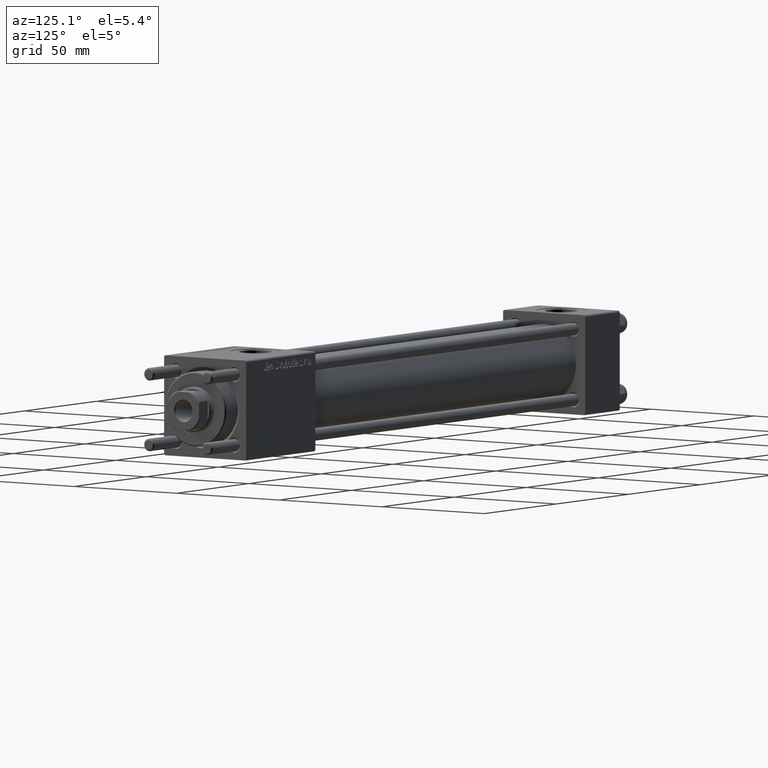
[diagram: clean part render]
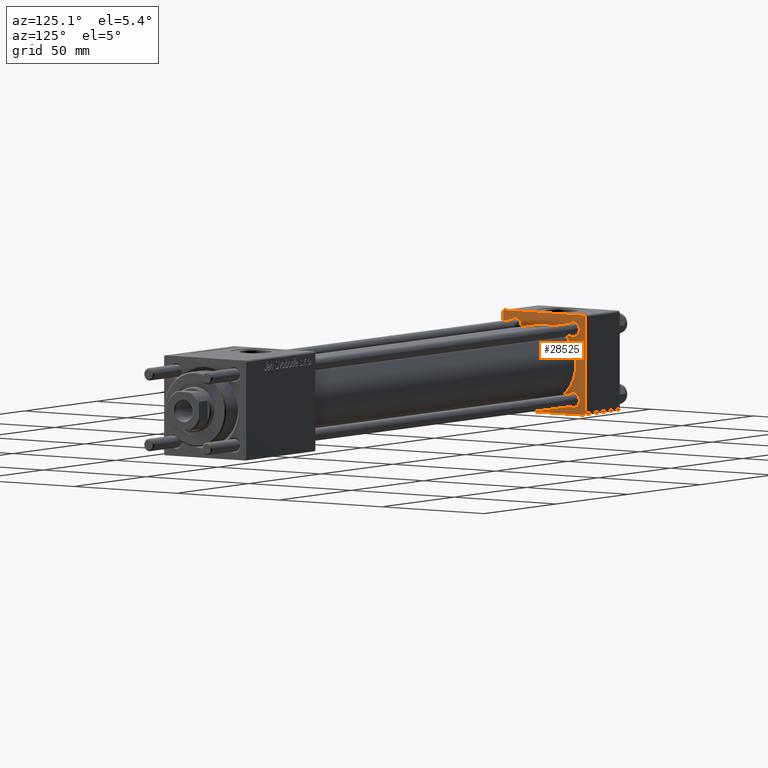
[diagram: same view with one face highlighted and labeled with its STEP entity id]
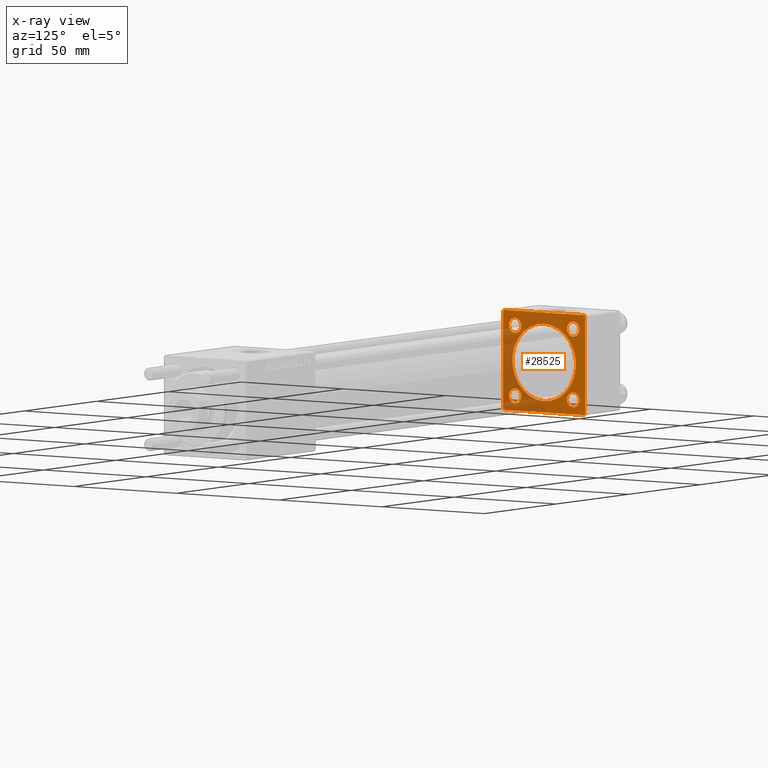
[diagram: x-ray of the same camera — body ghosted, the highlighted face saturated]
A machine part, auxiliary view. The second image highlights one B-rep face of the part: STEP entity #28525.
The next image is the same camera in x-ray: the body ghosted, the highlighted face saturated — about 36% of this face is hidden behind the body in this view.
In plain terms, the highlighted planar face has unit normal (-1, 0, 0).
Its self-contained STEP definition (entity closure, byte-faithful):
#229 = VERTEX_POINT ( 'NONE', #48497 ) ;
#1364 = DIRECTION ( 'NONE',  ( -1.000000000000000000, -0.000000000000000000, -0.000000000000000000 ) ) ;
#1410 = CIRCLE ( 'NONE', #51759, 2.999999999999948930 ) ;
#1480 = DIRECTION ( 'NONE',  ( 0.000000000000000000, 0.000000000000000000, 1.000000000000000000 ) ) ;
#1515 = CARTESIAN_POINT ( 'NONE',  ( 24.00000000000000000, 14.14999999999999858, 17.14999999999994884 ) ) ;
#1564 = EDGE_CURVE ( 'NONE', #53216, #34982, #18871, .T. ) ;
#1810 = DIRECTION ( 'NONE',  ( 0.000000000000000000, 0.000000000000000000, 1.000000000000000000 ) ) ;
#2356 = DIRECTION ( 'NONE',  ( -1.000000000000000000, 0.000000000000000000, -0.000000000000000000 ) ) ;
#2470 = DIRECTION ( 'NONE',  ( 0.000000000000000000, 8.673617379884036705E-17, -1.000000000000000000 ) ) ;
#2591 = CARTESIAN_POINT ( 'NONE',  ( 24.00000000000000000, 20.00000000000000000, -19.50000000000002132 ) ) ;
#2921 = VERTEX_POINT ( 'NONE', #36025 ) ;
#3069 = ORIENTED_EDGE ( 'NONE', *, *, #20165, .T. ) ;
#4094 = ORIENTED_EDGE ( 'NONE', *, *, #24742, .F. ) ;
#4797 = CARTESIAN_POINT ( 'NONE',  ( 24.00000000000000000, -14.14999999999999503, -14.15000000000000391 ) ) ;
#5036 = VERTEX_POINT ( 'NONE', #22498 ) ;
#5214 = CARTESIAN_POINT ( 'NONE',  ( 24.00000000000000000, 20.00000000000000000, -20.00000000000000711 ) ) ;
#5322 = EDGE_LOOP ( 'NONE', ( #7060, #46036 ) ) ;
#5475 = AXIS2_PLACEMENT_3D ( 'NONE', #49410, #49968, #1810 ) ;
#5855 = CARTESIAN_POINT ( 'NONE',  ( 24.00000000000000000, 14.14999999999999858, -17.14999999999994884 ) ) ;
#6334 = CIRCLE ( 'NONE', #35650, 2.999999999999948930 ) ;
#6753 = LINE ( 'NONE', #50632, #17489 ) ;
#7060 = ORIENTED_EDGE ( 'NONE', *, *, #42939, .T. ) ;
#7360 = CARTESIAN_POINT ( 'NONE',  ( 24.00000000000000000, -20.00000000000000355, 19.49999999999998224 ) ) ;
#7595 = LINE ( 'NONE', #19627, #48617 ) ;
#7633 = DIRECTION ( 'NONE',  ( 0.000000000000000000, -0.7071067811865425767, 0.7071067811865525687 ) ) ;
#7920 = LINE ( 'NONE', #55516, #23901 ) ;
#8390 = ORIENTED_EDGE ( 'NONE', *, *, #10670, .T. ) ;
#8720 = LINE ( 'NONE', #48849, #8730 ) ;
#8730 = VECTOR ( 'NONE', #17624, 1000.000000000000114 ) ;
#8965 = LINE ( 'NONE', #47971, #49612 ) ;
#9645 = DIRECTION ( 'NONE',  ( 0.000000000000000000, 0.000000000000000000, 1.000000000000000000 ) ) ;
#9673 = CARTESIAN_POINT ( 'NONE',  ( 23.99999999999999289, -2.602085213965210642E-15, 0.000000000000000000 ) ) ;
#10092 = CARTESIAN_POINT ( 'NONE',  ( 24.00000000000000000, -19.49999999999999289, 19.99999999999998934 ) ) ;
#10515 = ORIENTED_EDGE ( 'NONE', *, *, #44766, .T. ) ;
#10670 = EDGE_CURVE ( 'NONE', #12273, #45550, #16924, .T. ) ;
#10686 = AXIS2_PLACEMENT_3D ( 'NONE', #4797, #24261, #45774 ) ;
#11209 = DIRECTION ( 'NONE',  ( 0.000000000000000000, 0.000000000000000000, 1.000000000000000000 ) ) ;
#11231 = CARTESIAN_POINT ( 'NONE',  ( 24.00000000000000000, 14.14999999999999858, 11.15000000000005365 ) ) ;
#11267 = VERTEX_POINT ( 'NONE', #23962 ) ;
#11317 = DIRECTION ( 'NONE',  ( 0.000000000000000000, -1.000000000000000000, -2.602085213965210149E-16 ) ) ;
#11793 = EDGE_CURVE ( 'NONE', #13203, #56105, #6334, .T. ) ;
#12273 = VERTEX_POINT ( 'NONE', #35113 ) ;
#12689 = EDGE_LOOP ( 'NONE', ( #41482, #55233 ) ) ;
#13203 = VERTEX_POINT ( 'NONE', #1515 ) ;
#13991 = EDGE_CURVE ( 'NONE', #34793, #36107, #30207, .T. ) ;
#15761 = AXIS2_PLACEMENT_3D ( 'NONE', #9673, #32023, #45501 ) ;
#16067 = VECTOR ( 'NONE', #17946, 1000.000000000000000 ) ;
#16452 = CARTESIAN_POINT ( 'NONE',  ( 23.99999999999999289, -7.038826752868131828E-16, -15.50000000000000000 ) ) ;
#16924 = LINE ( 'NONE', #2591, #31016 ) ;
#17207 = EDGE_CURVE ( 'NONE', #39009, #44086, #51214, .T. ) ;
#17230 = CARTESIAN_POINT ( 'NONE',  ( 24.00000000000000000, 14.14999999999999858, -14.15000000000000036 ) ) ;
#17489 = VECTOR ( 'NONE', #2470, 1000.000000000000000 ) ;
#17624 = DIRECTION ( 'NONE',  ( -0.000000000000000000, -0.7071067811865500152, -0.7071067811865451302 ) ) ;
#17946 = DIRECTION ( 'NONE',  ( 0.000000000000000000, 0.7071067811865401342, -0.7071067811865549002 ) ) ;
#18871 = CIRCLE ( 'NONE', #50024, 2.999999999999948930 ) ;
#19627 = CARTESIAN_POINT ( 'NONE',  ( 24.00000000000000000, 20.00000000000000000, 20.00000000000000000 ) ) ;
#20165 = EDGE_CURVE ( 'NONE', #24892, #229, #6753, .T. ) ;
#20650 = CIRCLE ( 'NONE', #56396, 2.999999999999948930 ) ;
#21408 = EDGE_CURVE ( 'NONE', #34615, #5036, #7920, .T. ) ;
#21861 = EDGE_CURVE ( 'NONE', #12273, #42458, #39655, .T. ) ;
#22498 = CARTESIAN_POINT ( 'NONE',  ( 24.00000000000000000, 19.50000000000000000, 20.00000000000000000 ) ) ;
#23498 = ORIENTED_EDGE ( 'NONE', *, *, #53504, .T. ) ;
#23901 = VECTOR ( 'NONE', #7633, 999.9999999999998863 ) ;
#23962 = CARTESIAN_POINT ( 'NONE',  ( 24.00000000000000000, -14.14999999999999503, 17.15000000000000924 ) ) ;
#23967 = EDGE_CURVE ( 'NONE', #34615, #45550, #8965, .T. ) ;
#23983 = CIRCLE ( 'NONE', #15761, 15.50000000000000000 ) ;
#24261 = DIRECTION ( 'NONE',  ( -1.000000000000000000, -0.000000000000000000, -0.000000000000000000 ) ) ;
#24742 = EDGE_CURVE ( 'NONE', #44086, #39009, #23983, .T. ) ;
#24797 = AXIS2_PLACEMENT_3D ( 'NONE', #42497, #2356, #50805 ) ;
#24892 = VERTEX_POINT ( 'NONE', #7360 ) ;
#28270 = ORIENTED_EDGE ( 'NONE', *, *, #44313, .T. ) ;
#28463 = CARTESIAN_POINT ( 'NONE',  ( 24.00000000000000000, 20.00000000000000000, -19.50000000000002132 ) ) ;
#28525 = ADVANCED_FACE ( 'NONE', ( #28714, #42210, #29289, #46501, #41921, #51093 ), #54538, .F. ) ;
#28714 = FACE_BOUND ( 'NONE', #53295, .T. ) ;
#28895 = AXIS2_PLACEMENT_3D ( 'NONE', #40647, #1364, #36337 ) ;
#29278 = DIRECTION ( 'NONE',  ( 0.000000000000000000, 0.000000000000000000, 1.000000000000000000 ) ) ;
#29289 = FACE_BOUND ( 'NONE', #12689, .T. ) ;
#29826 = CARTESIAN_POINT ( 'NONE',  ( 24.00000000000000000, -14.14999999999999503, -17.15000000000000924 ) ) ;
#30207 = CIRCLE ( 'NONE', #5475, 3.000000000000004441 ) ;
#30320 = VECTOR ( 'NONE', #49096, 1000.000000000000000 ) ;
#30472 = CARTESIAN_POINT ( 'NONE',  ( 23.99999999999999289, -2.602085213965210642E-15, 15.50000000000000000 ) ) ;
#30513 = EDGE_CURVE ( 'NONE', #5036, #55094, #7595, .T. ) ;
#30833 = CARTESIAN_POINT ( 'NONE',  ( 24.00000000000000000, -19.50000000000000711, -20.00000000000000000 ) ) ;
#31016 = VECTOR ( 'NONE', #33548, 1000.000000000000000 ) ;
#31145 = DIRECTION ( 'NONE',  ( -1.000000000000000000, -0.000000000000000000, -0.000000000000000000 ) ) ;
#31318 = DIRECTION ( 'NONE',  ( 0.000000000000000000, 0.000000000000000000, 1.000000000000000000 ) ) ;
#32023 = DIRECTION ( 'NONE',  ( 1.000000000000000000, 0.000000000000000000, 0.000000000000000000 ) ) ;
#33548 = DIRECTION ( 'NONE',  ( -0.000000000000000000, 0.7071067811865524577, 0.7071067811865426878 ) ) ;
#34362 = CIRCLE ( 'NONE', #43535, 3.000000000000004441 ) ;
#34486 = EDGE_LOOP ( 'NONE', ( #4094, #50042 ) ) ;
#34615 = VERTEX_POINT ( 'NONE', #37583 ) ;
#34705 = DIRECTION ( 'NONE',  ( 0.000000000000000000, 0.000000000000000000, 1.000000000000000000 ) ) ;
#34793 = VERTEX_POINT ( 'NONE', #29826 ) ;
#34982 = VERTEX_POINT ( 'NONE', #5855 ) ;
#35113 = CARTESIAN_POINT ( 'NONE',  ( 24.00000000000000000, 19.50000000000000711, -20.00000000000000711 ) ) ;
#35650 = AXIS2_PLACEMENT_3D ( 'NONE', #35880, #53945, #1480 ) ;
#35747 = CARTESIAN_POINT ( 'NONE',  ( 24.00000000000000000, -19.50000000000000711, -20.00000000000000000 ) ) ;
#35880 = CARTESIAN_POINT ( 'NONE',  ( 24.00000000000000000, 14.14999999999999858, 14.15000000000000036 ) ) ;
#36025 = CARTESIAN_POINT ( 'NONE',  ( 24.00000000000000000, -14.14999999999999503, 11.15000000000000036 ) ) ;
#36107 = VERTEX_POINT ( 'NONE', #40301 ) ;
#36337 = DIRECTION ( 'NONE',  ( 0.000000000000000000, 0.000000000000000000, 1.000000000000000000 ) ) ;
#36917 = ORIENTED_EDGE ( 'NONE', *, *, #30513, .T. ) ;
#37037 = LINE ( 'NONE', #30833, #16067 ) ;
#37583 = CARTESIAN_POINT ( 'NONE',  ( 24.00000000000000000, 20.00000000000000000, 19.49999999999999289 ) ) ;
#37873 = DIRECTION ( 'NONE',  ( 1.000000000000000000, 0.000000000000000000, 0.000000000000000000 ) ) ;
#37893 = CARTESIAN_POINT ( 'NONE',  ( 24.00000000000000000, 14.14999999999999858, 14.15000000000000036 ) ) ;
#38188 = DIRECTION ( 'NONE',  ( -1.000000000000000000, -0.000000000000000000, -0.000000000000000000 ) ) ;
#39009 = VERTEX_POINT ( 'NONE', #16452 ) ;
#39655 = LINE ( 'NONE', #5214, #30320 ) ;
#39735 = ORIENTED_EDGE ( 'NONE', *, *, #21408, .T. ) ;
#40054 = CARTESIAN_POINT ( 'NONE',  ( 24.00000000000000000, 14.14999999999999858, -14.15000000000000036 ) ) ;
#40301 = CARTESIAN_POINT ( 'NONE',  ( 24.00000000000000000, -14.14999999999999503, -11.15000000000000036 ) ) ;
#40647 = CARTESIAN_POINT ( 'NONE',  ( 24.00000000000000000, -14.14999999999999503, 14.15000000000000391 ) ) ;
#41482 = ORIENTED_EDGE ( 'NONE', *, *, #44056, .T. ) ;
#41536 = CARTESIAN_POINT ( 'NONE',  ( 24.00000000000000000, 14.14999999999999858, -11.15000000000005365 ) ) ;
#41593 = CIRCLE ( 'NONE', #28895, 3.000000000000004441 ) ;
#41921 = FACE_BOUND ( 'NONE', #34486, .T. ) ;
#42210 = FACE_BOUND ( 'NONE', #5322, .T. ) ;
#42458 = VERTEX_POINT ( 'NONE', #35747 ) ;
#42497 = CARTESIAN_POINT ( 'NONE',  ( 24.00000000000000000, 0.000000000000000000, 0.000000000000000000 ) ) ;
#42758 = CIRCLE ( 'NONE', #10686, 3.000000000000004441 ) ;
#42939 = EDGE_CURVE ( 'NONE', #34982, #53216, #1410, .T. ) ;
#43535 = AXIS2_PLACEMENT_3D ( 'NONE', #48822, #49106, #31318 ) ;
#43575 = ORIENTED_EDGE ( 'NONE', *, *, #13991, .T. ) ;
#44056 = EDGE_CURVE ( 'NONE', #2921, #11267, #34362, .T. ) ;
#44086 = VERTEX_POINT ( 'NONE', #30472 ) ;
#44313 = EDGE_CURVE ( 'NONE', #56105, #13203, #20650, .T. ) ;
#44414 = EDGE_CURVE ( 'NONE', #11267, #2921, #41593, .T. ) ;
#44766 = EDGE_CURVE ( 'NONE', #55094, #24892, #8720, .T. ) ;
#45263 = EDGE_LOOP ( 'NONE', ( #51039, #8390, #54937, #39735, #36917, #10515, #3069, #48856 ) ) ;
#45501 = DIRECTION ( 'NONE',  ( 0.000000000000000000, 0.000000000000000000, 1.000000000000000000 ) ) ;
#45550 = VERTEX_POINT ( 'NONE', #28463 ) ;
#45717 = AXIS2_PLACEMENT_3D ( 'NONE', #50204, #37873, #11209 ) ;
#45774 = DIRECTION ( 'NONE',  ( 0.000000000000000000, 0.000000000000000000, 1.000000000000000000 ) ) ;
#46036 = ORIENTED_EDGE ( 'NONE', *, *, #1564, .T. ) ;
#46501 = FACE_BOUND ( 'NONE', #49882, .T. ) ;
#47971 = CARTESIAN_POINT ( 'NONE',  ( 24.00000000000000000, 20.00000000000000000, 20.00000000000000000 ) ) ;
#48497 = CARTESIAN_POINT ( 'NONE',  ( 24.00000000000000000, -20.00000000000000000, -19.49999999999999645 ) ) ;
#48617 = VECTOR ( 'NONE', #11317, 1000.000000000000000 ) ;
#48822 = CARTESIAN_POINT ( 'NONE',  ( 24.00000000000000000, -14.14999999999999503, 14.15000000000000391 ) ) ;
#48849 = CARTESIAN_POINT ( 'NONE',  ( 24.00000000000000000, -20.00000000000000355, 19.49999999999998224 ) ) ;
#48856 = ORIENTED_EDGE ( 'NONE', *, *, #48862, .T. ) ;
#48862 = EDGE_CURVE ( 'NONE', #229, #42458, #37037, .T. ) ;
#49096 = DIRECTION ( 'NONE',  ( 0.000000000000000000, -1.000000000000000000, 1.734723475976807094E-16 ) ) ;
#49106 = DIRECTION ( 'NONE',  ( -1.000000000000000000, -0.000000000000000000, -0.000000000000000000 ) ) ;
#49410 = CARTESIAN_POINT ( 'NONE',  ( 24.00000000000000000, -14.14999999999999503, -14.15000000000000391 ) ) ;
#49612 = VECTOR ( 'NONE', #51988, 1000.000000000000000 ) ;
#49882 = EDGE_LOOP ( 'NONE', ( #28270, #49960 ) ) ;
#49960 = ORIENTED_EDGE ( 'NONE', *, *, #11793, .T. ) ;
#49968 = DIRECTION ( 'NONE',  ( -1.000000000000000000, -0.000000000000000000, -0.000000000000000000 ) ) ;
#50024 = AXIS2_PLACEMENT_3D ( 'NONE', #40054, #31145, #9645 ) ;
#50042 = ORIENTED_EDGE ( 'NONE', *, *, #17207, .F. ) ;
#50204 = CARTESIAN_POINT ( 'NONE',  ( 23.99999999999999289, -2.602085213965210642E-15, 0.000000000000000000 ) ) ;
#50632 = CARTESIAN_POINT ( 'NONE',  ( 24.00000000000000000, -20.00000000000000355, 19.99999999999998934 ) ) ;
#50805 = DIRECTION ( 'NONE',  ( -0.000000000000000000, 0.000000000000000000, 1.000000000000000000 ) ) ;
#51039 = ORIENTED_EDGE ( 'NONE', *, *, #21861, .F. ) ;
#51093 = FACE_OUTER_BOUND ( 'NONE', #45263, .T. ) ;
#51214 = CIRCLE ( 'NONE', #45717, 15.50000000000000000 ) ;
#51759 = AXIS2_PLACEMENT_3D ( 'NONE', #17230, #51915, #34705 ) ;
#51915 = DIRECTION ( 'NONE',  ( -1.000000000000000000, -0.000000000000000000, -0.000000000000000000 ) ) ;
#51988 = DIRECTION ( 'NONE',  ( 0.000000000000000000, 0.000000000000000000, -1.000000000000000000 ) ) ;
#53216 = VERTEX_POINT ( 'NONE', #41536 ) ;
#53295 = EDGE_LOOP ( 'NONE', ( #43575, #23498 ) ) ;
#53504 = EDGE_CURVE ( 'NONE', #36107, #34793, #42758, .T. ) ;
#53945 = DIRECTION ( 'NONE',  ( -1.000000000000000000, -0.000000000000000000, -0.000000000000000000 ) ) ;
#54538 = PLANE ( 'NONE',  #24797 ) ;
#54937 = ORIENTED_EDGE ( 'NONE', *, *, #23967, .F. ) ;
#55094 = VERTEX_POINT ( 'NONE', #10092 ) ;
#55233 = ORIENTED_EDGE ( 'NONE', *, *, #44414, .T. ) ;
#55516 = CARTESIAN_POINT ( 'NONE',  ( 24.00000000000000000, 19.50000000000000000, 20.00000000000000000 ) ) ;
#56105 = VERTEX_POINT ( 'NONE', #11231 ) ;
#56396 = AXIS2_PLACEMENT_3D ( 'NONE', #37893, #38188, #29278 ) ;